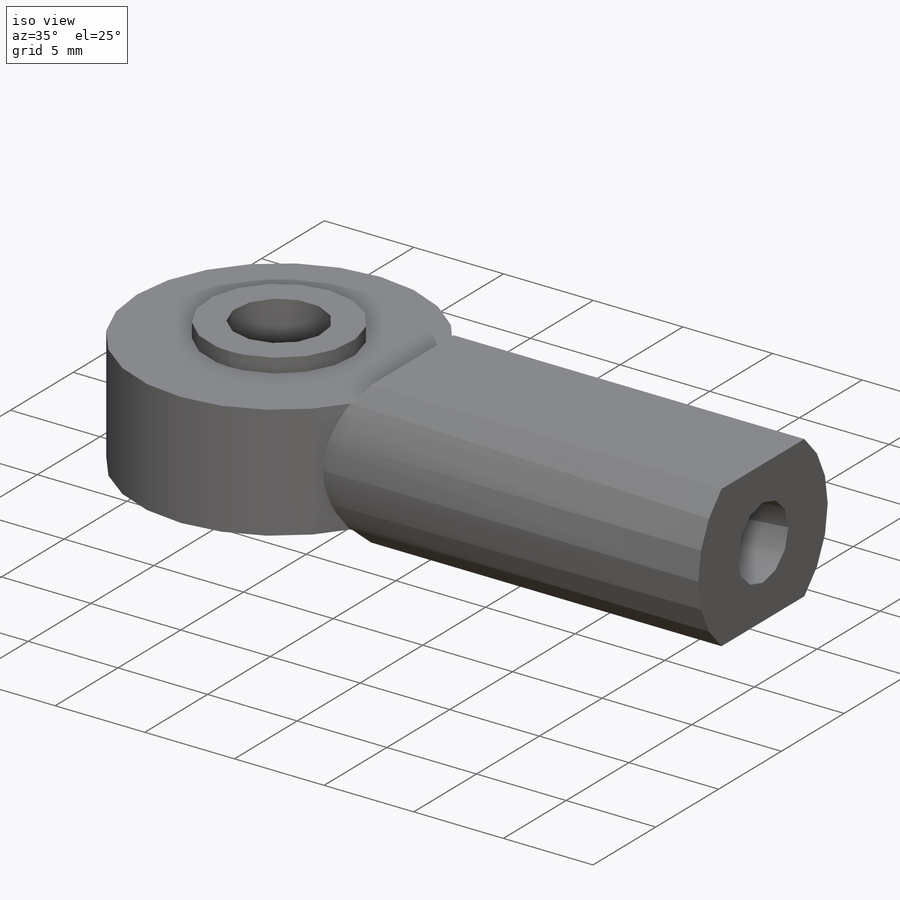
[diagram: iso view]
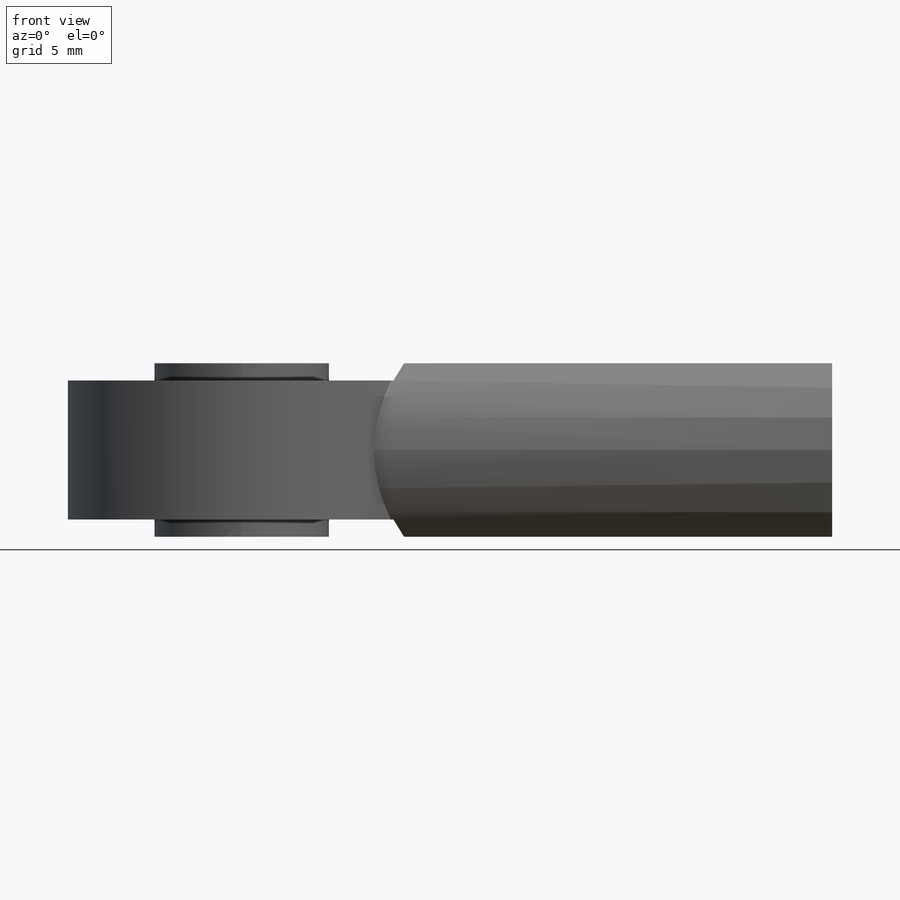
[diagram: front view]
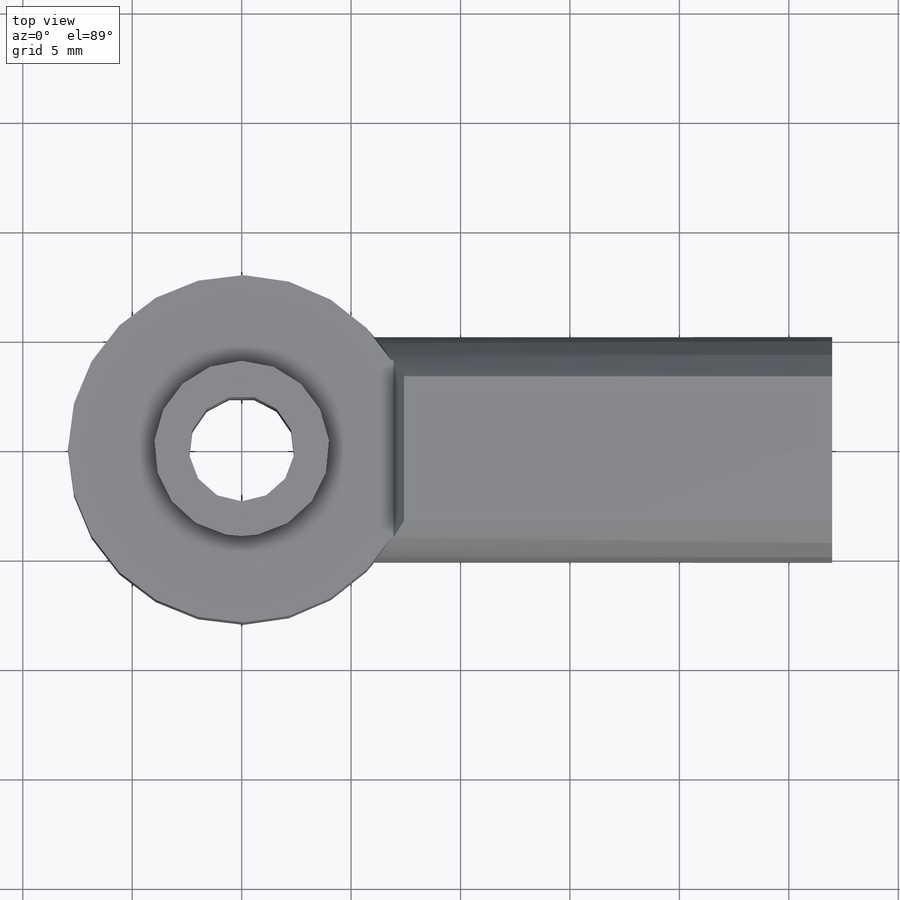
[diagram: top view]
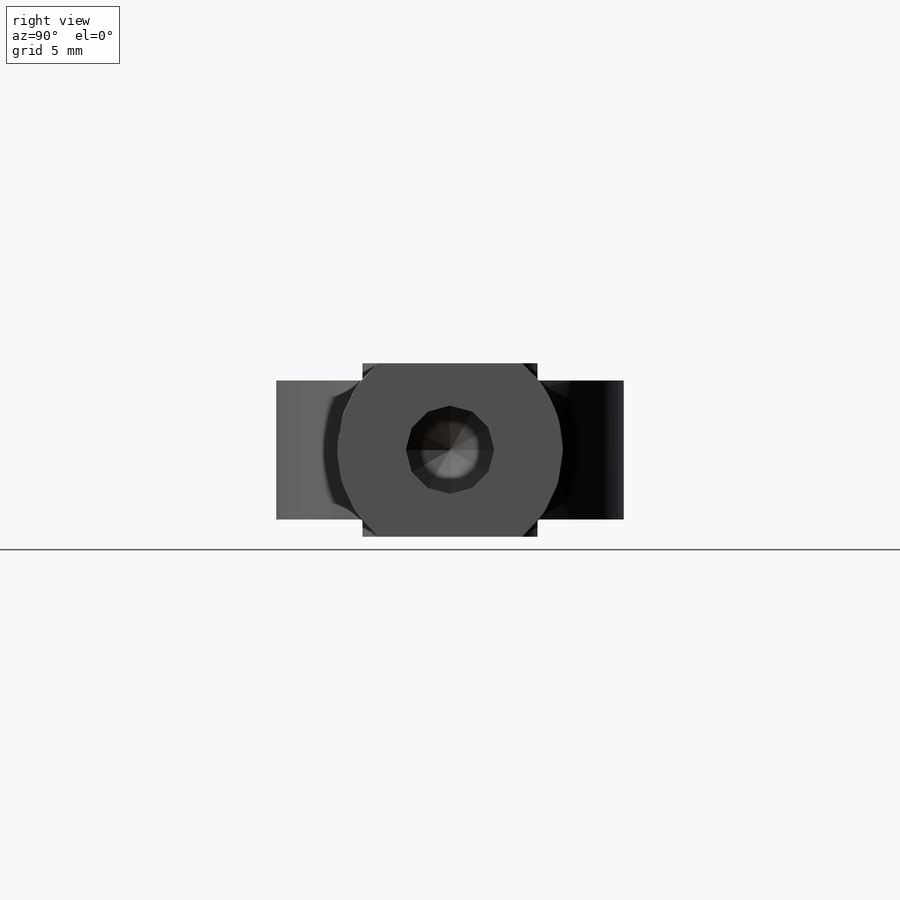
[diagram: right view]
SOLIDWORKS PART (.sldprt)
format: sldprt  version: not decoded by parser v0  size: 233,984 bytes
history: native  units: mm
features: sketch x8, extrude x3, cut_extrude x2, material x1, hole x1, thread x1 (+11 scaffold rows collapsed)
feature tree (27):
  scaffold x11  (default folders/planes/origin — collapsed)
  material  "Material <not specified>"
  sketch  "Sketch1"  dims[D1=15.875mm]
  extrude  "Head Diameter"  Depth=6.35mm
  sketch  "Sketch7"  dims[D2=5.1562mm D1=7.9248mm]
  extrude  "Boss-Extrude4"  Depth=26.9748mm
  sketch  "Sketch8"  dims[c1.D1=0.7874mm c1.D2=14.732mm c1.D3=15.6464mm c1.D4=3.9624mm c2.D1=6.9342mm c2.D2=7.4168mm]
  cut_extrude  "Cut-Extrude2"  Depth=15.875mm
  sketch  "Sketch9"  dims[D1=8.001mm]
  extrude  "Boss-Extrude5"  Depth=7.9248mm
  sketch  "Sketch10"  dims[D1=4.826mm]
  cut_extrude  "Cut-Extrude3"  Depth=7.9248mm
  sketch  "Sketch18"
  hole  "#10-32 Tapped Hole1"  Diameter=4.0386mm Depth=14.224mm
  sketch  "Sketch20"
  sketch  "Sketch19"  dims[hole-wizard template sketch: 47 standard entries collapsed; hole parameters kept: c15.Tap Drill Depth=14.224mm c15.D3=~14.816244mm c15.Drill Angle=118.0deg]
  thread  "Hole Thread1"  Diameter=9.652mm  [1 undecoded]
decode coverage: 13 of 15 modeling features carry decoded parameters
note: ~ marks probable driven/reference dimensions
note: 1 parameter value undecoded
note: suppression state not decoded; provenance and decode notes live in map.json
